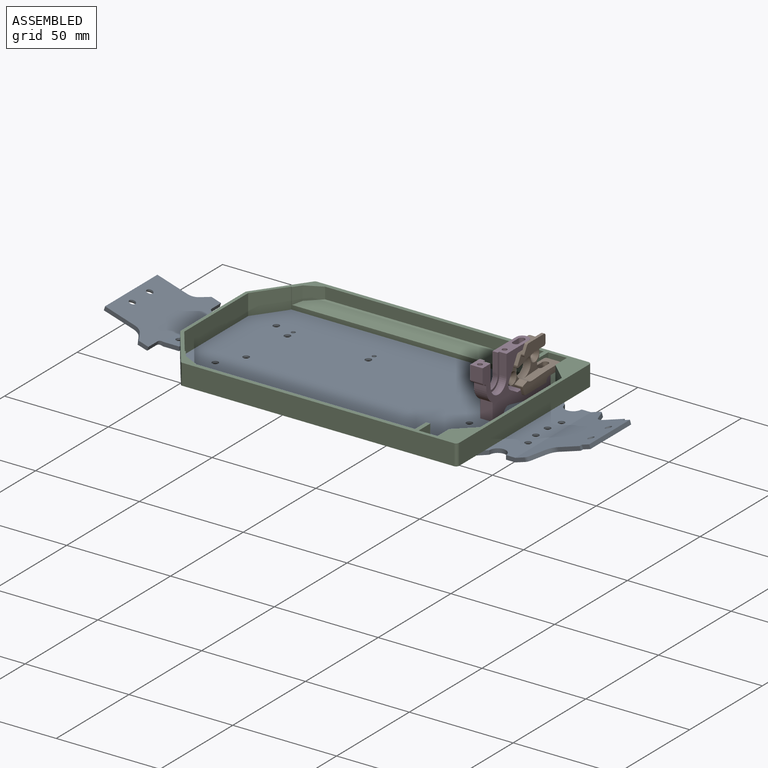
[diagram: assembled view]
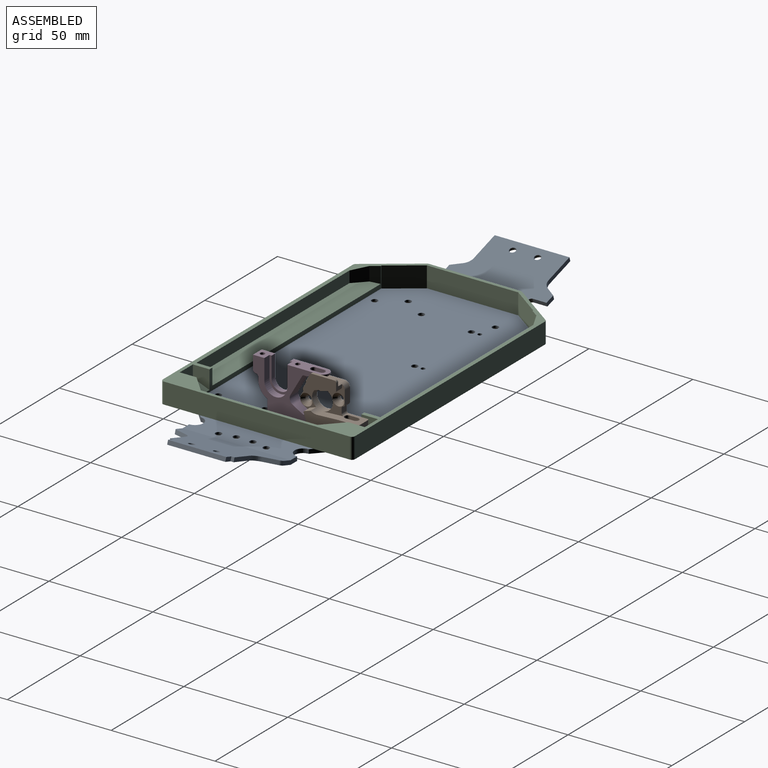
[diagram: assembled view, second angle]
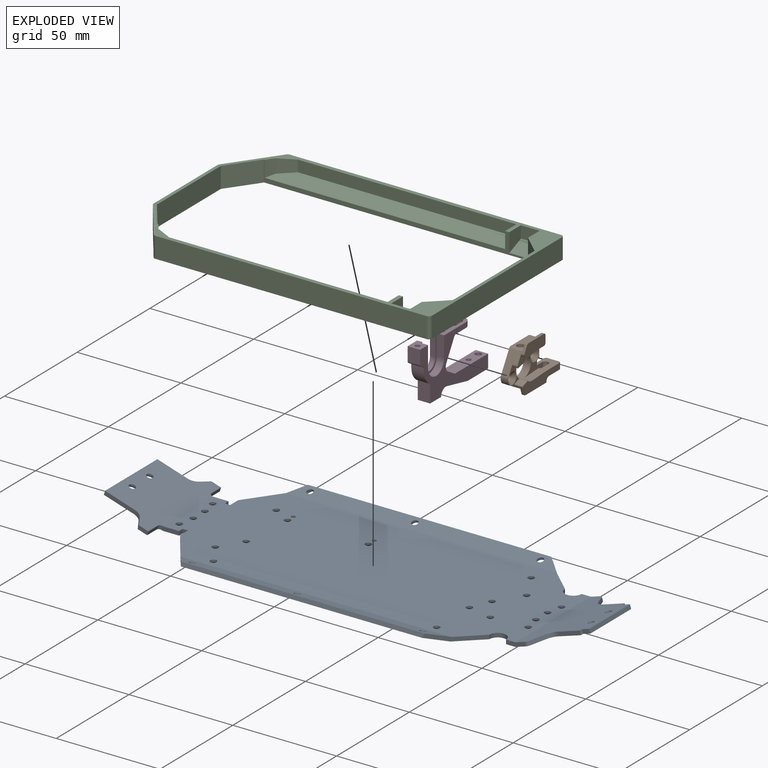
[diagram: exploded view]
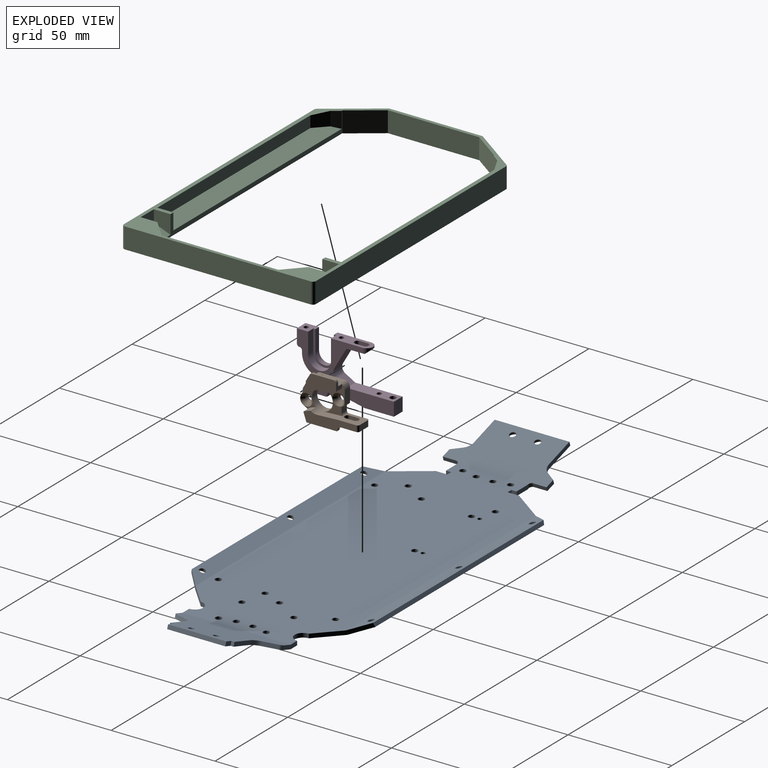
[diagram: exploded view, second angle]
ASSEMBLY  parts=4 mates=3
PART A: 116 faces, bbox 231.6x88.5x10.6 mm
  f0: plane 8.32x2mm, normal (0,-1,0), area 16.1mm2, adj f13,f19,f20,f35,f43
  f1: plane 8.32x2mm, normal (0,1,0), area 16.1mm2, adj f12,f19,f20,f35,f36
  f2: plane 28x1.91mm, normal (0.95,0,0.3), area 56mm2, adj f5,f6,f22,f27
  f3: plane 9.34x3.34mm, normal (0,1,0), area 18.1mm2, adj f5,f6,f7,f19,f20,f23
  f4: plane 9.34x3.34mm, normal (0,-1,0), area 18.1mm2, adj f5,f6,f18,f19,f20,f32
  f5: plane 52.01x27.79mm, normal (0.3,0,-0.95), area 1038.3mm2, adj f2,f3,f4,f19,f21,f22,f23,f24
  f6: plane 52x27.18mm, normal (-0.3,0,0.95), area 1032.1mm2, adj f2,f3,f4,f20,f21,f22,f23,f24
  f7: cylinder r=4mm len=8mm, axis (0,0,-1), area 25.1mm2, adj f3,f8,f19,f20
  f8: plane 19.55x18.24mm, normal (0.68,0.73,0), area 53.6mm2, adj f7,f19,f20,f48,f49,f50
  f9: plane 24.24x17.36mm, normal (-0.81,0.58,0), area 59.7mm2, adj f10,f19,f20,f48,f49,f50
  f10: plane 5.5x2mm, normal (-1,0,0), area 11mm2, adj f9,f11,f19,f20
  f11: plane 2.6x2mm, normal (0,1,0), area 5.2mm2, adj f10,f12,f19,f20
  f12: plane 2.5x2mm, normal (1,0,0), area 5mm2, adj f1,f11,f19,f20
  f13: plane 2.5x2mm, normal (1,0,0), area 5mm2, adj f0,f14,f19,f20
  f14: plane 2.6x2mm, normal (0,-1,0), area 5.2mm2, adj f13,f15,f19,f20
  f15: plane 5.5x2mm, normal (-1,0,0), area 11mm2, adj f14,f16,f19,f20
  f16: plane 24.24x17.36mm, normal (-0.81,-0.58,0), area 59.7mm2, adj f15,f19,f20,f51,f52,f53
  f17: plane 19.55x18.24mm, normal (0.68,-0.73,0), area 53.6mm2, adj f18,f19,f20,f51,f52,f53
  f18: cylinder r=4mm len=8mm, axis (0,0,-1), area 25.1mm2, adj f4,f17,f19,f20
  f19: plane 176x73.12mm, normal (0,0,-1), area 11421.9mm2, adj f0,f1,f3,f4,f5,f7,f8,f9
  f20: plane 176x72.53mm, normal (0,0,1), area 11596.5mm2, adj f0,f1,f3,f4,f6,f7,f8,f9
  f21: plane 1.9x1.5mm, normal (0.95,0,0.3), area 3mm2, adj f5,f6,f22,f26
  f22: plane 4.18x3.02mm, normal (0,1,0), area 7.5mm2, adj f2,f5,f6,f21
  f23: cylinder r=2mm len=2.39mm, axis (-0.3,0,0.95), area 4.4mm2, adj f3,f5,f6,f24
  f24: plane 6.4x3.36mm, normal (0.87,0.41,0.27), area 13.6mm2, adj f5,f6,f23,f25
  f25: cylinder r=5mm len=4.93mm, axis (-0.3,0,0.95), area 11.1mm2, adj f5,f6,f24,f26
  f26: plane 11.09x5.17mm, normal (0,1,0), area 21.7mm2, adj f5,f6,f21,f25
  f27: plane 4.18x3.02mm, normal (0,-1,0), area 7.5mm2, adj f2,f5,f6,f28
  f28: plane 1.9x1.5mm, normal (0.95,0,0.3), area 3mm2, adj f5,f6,f27,f29
  f29: plane 11.09x5.17mm, normal (0,-1,0), area 21.7mm2, adj f5,f6,f28,f30
  f30: cylinder r=5mm len=4.93mm, axis (-0.3,0,0.95), area 11.1mm2, adj f5,f6,f29,f31
  f31: plane 6.4x3.36mm, normal (0.87,-0.41,0.27), area 13.6mm2, adj f5,f6,f30,f32
  f32: cylinder r=2mm len=2.39mm, axis (-0.3,0,0.95), area 4.4mm2, adj f4,f5,f6,f31
  f33: plane 36x1.91mm, normal (-0.95,0,0.3), area 72mm2, adj f34,f35,f41,f44
  f34: plane 50x27.18mm, normal (0.3,0,0.95), area 1110.6mm2, adj f20,f33,f36,f37,f38,f39,f40,f41
  f35: plane 50.01x27.79mm, normal (-0.3,0,-0.95), area 1106mm2, adj f0,f1,f19,f33,f36,f37,f38,f39
  f36: cylinder r=1.5mm len=2.28mm, axis (0.3,0,0.95), area 4.5mm2, adj f1,f34,f35,f37
  f37: plane 6.5x1.83mm, normal (0.95,0,-0.3), area 12.4mm2, adj f34,f35,f36,f38
  f38: plane 5.16x3.27mm, normal (0,1,0), area 9.2mm2, adj f34,f35,f37,f39
  f39: plane 4.69x3.43mm, normal (-0.8,0.54,0.25), area 10.7mm2, adj f34,f35,f38,f40
  f40: cylinder r=5mm len=4.61mm, axis (0.3,0,0.95), area 9.8mm2, adj f34,f35,f39,f41
  f41: plane 14.91x6.37mm, normal (0,1,0), area 29.6mm2, adj f33,f34,f35,f40
  f42: plane 6.5x1.83mm, normal (0.95,0,-0.3), area 12.4mm2, adj f34,f35,f43,f47
  f43: cylinder r=1.5mm len=2.28mm, axis (0.3,0,0.95), area 4.5mm2, adj f0,f34,f35,f42
  f44: plane 14.91x6.37mm, normal (0,-1,0), area 29.6mm2, adj f33,f34,f35,f45
  f45: cylinder r=5mm len=4.61mm, axis (0.3,0,0.95), area 9.8mm2, adj f34,f35,f44,f46
  f46: plane 4.69x3.43mm, normal (-0.8,-0.54,0.25), area 10.7mm2, adj f34,f35,f45,f47
  f47: plane 5.16x3.27mm, normal (0,-1,0), area 9.2mm2, adj f34,f35,f42,f46
  f48: plane 117.27x1.92mm, normal (0,0.96,0.29), area 233.5mm2, adj f8,f9,f49,f50
  f49: plane 129.97x7.68mm, normal (0,0.29,-0.96), area 928.6mm2, adj f8,f9,f19,f48,f88,f89,f90
  f50: plane 130.5x7.4mm, normal (0,-0.29,0.96), area 936.1mm2, adj f8,f9,f20,f48,f57,f58,f59
  f51: plane 129.97x7.68mm, normal (0,-0.29,-0.96), area 928.6mm2, adj f16,f17,f19,f53,f91,f92,f93
  f52: plane 130.5x7.4mm, normal (0,0.29,0.96), area 936.1mm2, adj f16,f17,f20,f53,f54,f55,f56
  f53: plane 117.27x1.92mm, normal (0,-0.96,0.29), area 233.5mm2, adj f16,f17,f51,f52
  f54: cylinder r=1.5mm len=3.16mm, axis (0,0.29,0.96), area 9.4mm2, adj f52,f93
  f55: cylinder r=1.5mm len=3.16mm, axis (0,0.29,0.96), area 9.4mm2, adj f52,f92
  f56: cylinder r=1.5mm len=3.16mm, axis (0,0.29,0.96), area 9.4mm2, adj f52,f91
  f57: cylinder r=1.5mm len=3.16mm, axis (0,-0.29,0.96), area 9.4mm2, adj f50,f90
  f58: cylinder r=1.5mm len=3.16mm, axis (0,-0.29,0.96), area 9.4mm2, adj f50,f89
  f59: cylinder r=1.5mm len=3.16mm, axis (0,-0.29,0.96), area 9.4mm2, adj f50,f88
  f60: cylinder r=1.5mm len=3.15mm, axis (0.3,0,0.95), area 9.2mm2, adj f34,f87
  f61: cylinder r=1.5mm len=3.15mm, axis (0.3,0,0.95), area 9.2mm2, adj f34,f86
  f62: cylinder r=1.5mm len=3mm, axis (0,0,1), area 9.4mm2, adj f20,f111
  f63: cylinder r=1.5mm len=3mm, axis (0,0,1), area 9.4mm2, adj f20,f96
  f64: cylinder r=1.5mm len=3mm, axis (0,0,1), area 9.4mm2, adj f20,f95
  f65: cylinder r=1.5mm len=3mm, axis (0,0,1), area 9.4mm2, adj f20,f102
  f66: cylinder r=1.5mm len=3mm, axis (0,0,1), area 9.4mm2, adj f20,f99
  f67: cylinder r=1.5mm len=3mm, axis (0,0,1), area 9.4mm2, adj f20,f110
  f68: cylinder r=1.5mm len=3mm, axis (0,0,1), area 9.4mm2, adj f20,f107
  f69: cylinder r=1.5mm len=3mm, axis (0,0,1), area 9.4mm2, adj f20,f97
  f70: cylinder r=1.5mm len=3mm, axis (0,0,1), area 9.4mm2, adj f20,f98
  f71: cylinder r=1.5mm len=3mm, axis (0,0,1), area 9.4mm2, adj f20,f113
  f72: cylinder r=1.5mm len=3mm, axis (0,0,1), area 9.4mm2, adj f20,f112
  f73: cylinder r=1.5mm len=3mm, axis (0,0,1), area 9.4mm2, adj f20,f106
  f74: cylinder r=1.5mm len=3mm, axis (0,0,1), area 9.4mm2, adj f20,f103
  f75: cylinder r=1.5mm len=3mm, axis (0,0,1), area 9.4mm2, adj f20,f104
  f76: cylinder r=1.5mm len=3mm, axis (0,0,1), area 9.4mm2, adj f20,f105
  f77: cylinder r=1.5mm len=3mm, axis (0,0,1), area 9.4mm2, adj f20,f109
  f78: cylinder r=1.5mm len=3mm, axis (0,0,1), area 9.4mm2, adj f20,f94
  f79: cylinder r=1.5mm len=3mm, axis (0,0,1), area 9.4mm2, adj f20,f101
  f80: cylinder r=1.5mm len=3mm, axis (0,0,1), area 9.4mm2, adj f20,f100
  f81: cylinder r=1.5mm len=3mm, axis (0,0,1), area 9.4mm2, adj f20,f108
  f82: cylinder r=1.5mm len=3.16mm, axis (-0.3,0,0.95), area 9.3mm2, adj f6,f84
  f83: cylinder r=1.5mm len=3.16mm, axis (-0.3,0,0.95), area 9.3mm2, adj f6,f85
  f84: bspline ~5x4.77mm, area 17.8mm2, adj f5,f82
  f85: bspline ~5x4.77mm, area 17.8mm2, adj f5,f83
  f86: bspline ~5x4.77mm, area 17.8mm2, adj f35,f61
  f87: bspline ~5x4.77mm, area 17.8mm2, adj f35,f60
  f88: cone r=1.5mm half-angle=45deg, axis (0,0.29,-0.96), area 17.8mm2, adj f49,f59
  f89: cone r=1.5mm half-angle=45deg, axis (0,0.29,-0.96), area 17.8mm2, adj f49,f58
  f90: cone r=1.5mm half-angle=45deg, axis (0,0.29,-0.96), area 17.8mm2, adj f49,f57
  f91: cone r=1.5mm half-angle=45deg, axis (0,-0.29,-0.96), area 17.8mm2, adj f51,f56
  f92: cone r=1.5mm half-angle=45deg, axis (0,-0.29,-0.96), area 17.8mm2, adj f51,f55
  f93: cone r=1.5mm half-angle=45deg, axis (0,-0.29,-0.96), area 17.8mm2, adj f51,f54
  f94: cone r=1.5mm half-angle=45deg, axis (0,0,-1), area 17.8mm2, adj f19,f78
  f95: cone r=1.5mm half-angle=45deg, axis (0,0,-1), area 17.8mm2, adj f19,f64
  f96: cone r=1.5mm half-angle=45deg, axis (0,0,-1), area 17.8mm2, adj f19,f63
  f97: cone r=1.5mm half-angle=45deg, axis (0,0,-1), area 17.8mm2, adj f19,f69
  f98: cone r=1.5mm half-angle=45deg, axis (0,0,-1), area 17.8mm2, adj f19,f70
  f99: cone r=1.5mm half-angle=45deg, axis (0,0,-1), area 17.8mm2, adj f19,f66
  f100: cone r=1.5mm half-angle=45deg, axis (0,0,-1), area 17.8mm2, adj f19,f80
  f101: cone r=1.5mm half-angle=45deg, axis (0,0,-1), area 17.8mm2, adj f19,f79
  f102: cone r=1.5mm half-angle=45deg, axis (0,0,-1), area 17.8mm2, adj f19,f65
  f103: cone r=1.5mm half-angle=45deg, axis (0,0,-1), area 17.8mm2, adj f19,f74
  f104: cone r=1.5mm half-angle=45deg, axis (0,0,-1), area 17.8mm2, adj f19,f75
  f105: cone r=1.5mm half-angle=45deg, axis (0,0,-1), area 17.8mm2, adj f19,f76
  f106: cone r=1.5mm half-angle=45deg, axis (0,0,-1), area 17.8mm2, adj f19,f73
  f107: cone r=1.5mm half-angle=45deg, axis (0,0,-1), area 17.8mm2, adj f19,f68
  f108: cone r=1.5mm half-angle=45deg, axis (0,0,-1), area 17.8mm2, adj f19,f81
  f109: cone r=1.5mm half-angle=45deg, axis (0,0,-1), area 17.8mm2, adj f19,f77
  f110: cone r=1.5mm half-angle=45deg, axis (0,0,-1), area 17.8mm2, adj f19,f67
  f111: cone r=1.5mm half-angle=45deg, axis (0,0,-1), area 17.8mm2, adj f19,f62
  f112: cone r=1.5mm half-angle=45deg, axis (0,0,-1), area 17.8mm2, adj f19,f72
  f113: cone r=1.5mm half-angle=45deg, axis (0,0,-1), area 17.8mm2, adj f19,f71
  f114: cylinder r=1mm len=2mm, axis (0,0,1), area 12.6mm2, adj f19,f20
  f115: cylinder r=1mm len=2mm, axis (0,0,1), area 12.6mm2, adj f19,f20
PART B: 56 faces, bbox 30.8x21.8x7.6 mm
  f0: plane 9.8x7.55mm, normal (0,1,0), area 54.5mm2, adj f13,f16,f20,f21,f36,f50,f51,f52
  f1: cylinder r=5mm len=10mm, axis (0,0,-1), area 126.4mm2, adj f3,f16,f21,f35,f36,f38,f44,f47
  f2: cylinder r=1mm len=4mm, axis (0,0,1), area 6.2mm2, adj f3,f15,f22,f37,f41,f44
  f3: plane 14.31x10.54mm, normal (0,0,1), area 47.5mm2, adj f1,f2,f5,f6,f7,f8,f9,f13
  f4: plane 6.15x4.76mm, normal (-0.5,-0.87,0), area 24mm2, adj f11,f19,f21,f28,f32,f38
  f5: plane 6.6x3.55mm, normal (1,0,0), area 23.4mm2, adj f3,f8,f9,f21
  f6: plane 3.55x2.5mm, normal (1,0,0), area 8.9mm2, adj f3,f7,f13,f21
  f7: cylinder r=0.75mm len=3.55mm, axis (0,0,-1), area 4.2mm2, adj f3,f6,f8,f21
  f8: cylinder r=0.75mm len=3.55mm, axis (0,0,-1), area 4.2mm2, adj f3,f5,f7,f21
  f9: cylinder r=2.5mm len=6.15mm, axis (0,0,-1), area 17mm2, adj f3,f5,f17,f21,f22,f26
  f10: plane 12.28x7.55mm, normal (-0.87,0.5,0), area 59.4mm2, adj f11,f15,f18,f21,f25,f26,f33,f38
  f11: cylinder r=3mm len=4.1mm, axis (0,0,-1), area 16.7mm2, adj f4,f10,f21,f38
  f12: cylinder r=1.45mm len=2.9mm, axis (0,0,-1), area 19.1mm2, adj f21,f40
  f13: cylinder r=1mm len=3.55mm, axis (0,0,-1), area 5.6mm2, adj f0,f3,f6,f21
  f14: cylinder r=1.45mm len=2.9mm, axis (0,0,-1), area 19.1mm2, adj f21,f39
  f15: plane 14.65x5.25mm, normal (0,0,1), area 71.6mm2, adj f2,f10,f22,f23,f24,f25,f33,f37
  f16: plane 25.37x5.6mm, normal (0,0,1), area 104.2mm2, adj f0,f1,f19,f27,f28,f29,f30,f31
  f17: plane 12.16x6.15mm, normal (0,1,0), area 66.2mm2, adj f9,f18,f21,f26,f49
  f18: cylinder r=1mm len=6.15mm, axis (0,0,-1), area 6.4mm2, adj f10,f17,f21,f26
  f19: plane 24.54x7.55mm, normal (0,-1,0), area 143mm2, adj f4,f16,f20,f21,f27,f32,f50,f51
  f20: plane 5.55x2.9mm, normal (1,0,0), area 16.1mm2, adj f0,f19,f50,f51
  f21: plane 29.8x17mm, normal (0,0,-1), area 244.4mm2, adj f0,f1,f4,f5,f6,f7,f8,f9
  f22: plane 4x3.25mm, normal (1,0,0), area 8.1mm2, adj f2,f3,f9,f15,f23,f26
  f23: cylinder r=1mm len=1.4mm, axis (0,0,1), area 2.2mm2, adj f15,f22,f24,f26
  f24: plane 10.77x1.4mm, normal (0,1,0), area 15.1mm2, adj f15,f23,f25,f26
  f25: cylinder r=1mm len=1.4mm, axis (0,0,1), area 1.5mm2, adj f10,f15,f24,f26
  f26: plane 14.16x3.13mm, normal (0,0,-1), area 34.3mm2, adj f9,f10,f17,f18,f22,f23,f24,f25
  f27: cylinder r=1.75mm len=1.75mm, axis (0,0,1), area 3.8mm2, adj f16,f19,f31,f32
  f28: plane 4x3.62mm, normal (-0.95,-0.32,0), area 7.8mm2, adj f4,f16,f29,f32,f34,f38
  f29: cylinder r=0.5mm len=1.4mm, axis (0,0,1), area 0.9mm2, adj f16,f28,f30,f32
  f30: plane 14.14x1.4mm, normal (0,-1,0), area 19.8mm2, adj f16,f29,f31,f32
  f31: cylinder r=0.5mm len=1.4mm, axis (0,0,1), area 1.1mm2, adj f16,f27,f30,f32
  f32: plane 17.79x3.07mm, normal (0,0,-1), area 34.9mm2, adj f4,f19,f27,f28,f29,f30,f31
  f33: cylinder r=1mm len=1.5mm, axis (0,0,1), area 3.1mm2, adj f10,f15,f37,f44
  f34: cylinder r=0.5mm len=4mm, axis (0,0,1), area 3.1mm2, adj f16,f28,f35,f38
  f35: plane 4x2.98mm, normal (-0.32,0.95,0), area 12.6mm2, adj f1,f16,f34,f38
  f36: plane 10.04x4mm, normal (-0.05,1,0), area 40.2mm2, adj f0,f1,f3,f16
  f37: plane 12.65x1.5mm, normal (0,-1,0), area 19mm2, adj f2,f15,f33,f44
  f38: plane 10.6x7.75mm, normal (0,0,1), area 19.2mm2, adj f1,f4,f10,f11,f28,f34,f35,f40
  f39: cone r=1.45mm half-angle=45deg, axis (0,0,1), area 28mm2, adj f3,f14
  f40: cone r=1.45mm half-angle=45deg, axis (0,0,1), area 28mm2, adj f12,f38
  f41: plane 7.47x2.5mm, normal (0.26,-0.97,0), area 19.3mm2, adj f2,f3,f44,f48
  f42: plane 2.5x0.51mm, normal (-1,0,0), area 1.3mm2, adj f38,f44,f45,f46
  f43: plane 3.8x2.5mm, normal (0.26,-0.97,0), area 9.8mm2, adj f38,f44,f46,f47
  f44: plane 16.15x5.68mm, normal (0,0,1), area 31.6mm2, adj f1,f2,f10,f33,f37,f41,f42,f43
  f45: cylinder r=0.5mm len=2.5mm, axis (0,0,-1), area 0.7mm2, adj f10,f38,f42,f44
  f46: cylinder r=0.5mm len=2.5mm, axis (0,0,-1), area 2.3mm2, adj f38,f42,f43,f44
  f47: cylinder r=0.5mm len=2.5mm, axis (0,0,-1), area 0.5mm2, adj f1,f38,f43,f44
  f48: cylinder r=0.5mm len=2.5mm, axis (0,0,-1), area 0.5mm2, adj f1,f3,f41,f44
  f49: cylinder r=1.65mm len=5.61mm, axis (0,1,0), area 51.2mm2, adj f1,f17
  f50: cylinder r=1mm len=2.9mm, axis (0,1,0), area 4.6mm2, adj f0,f19,f20,f21
  f51: cylinder r=1mm len=2.9mm, axis (0,-1,0), area 4.6mm2, adj f0,f16,f19,f20
  f52: cylinder r=1.5mm len=3mm, axis (0,1,0), area 13.7mm2, adj f0,f19,f53,f54
  f53: plane 4x2.9mm, normal (0,0,-1), area 11.6mm2, adj f0,f19,f52,f55
  f54: plane 4x2.9mm, normal (0,0,1), area 11.6mm2, adj f0,f19,f52,f55
  f55: cylinder r=1.5mm len=3mm, axis (0,1,0), area 13.7mm2, adj f0,f19,f53,f54
PART C: 51 faces, bbox 150x92.5x10 mm
  f0: plane 127.27x9.91mm, normal (0,-1,0), area 274.7mm2, adj f2,f8,f18,f26,f32,f34,f40,f41
  f1: plane 127.27x9.91mm, normal (0,1,0), area 274.7mm2, adj f2,f9,f19,f24,f27,f33,f35,f37
  f2: plane 150x92.53mm, normal (0,0,1), area 1103.7mm2, adj f0,f1,f3,f4,f5,f6,f14,f18
  f3: plane 89.53x10mm, normal (1,0,0), area 895.3mm2, adj f2,f7,f43,f44
  f4: plane 56.16x10mm, normal (-1,0,0), area 561.6mm2, adj f2,f7,f24,f26
  f5: plane 22.75x16.29mm, normal (-0.81,-0.58,0), area 268.8mm2, adj f2,f7,f9,f13,f15,f16,f46,f48
  f6: plane 22.75x16.29mm, normal (-0.81,0.58,0), area 268.8mm2, adj f2,f7,f8,f12,f15,f17,f45,f47
  f7: plane 134.43x92.53mm, normal (0,0,-1), area 950.4mm2, adj f3,f4,f5,f6,f10,f11,f16,f17
  f8: plane 130.18x7.4mm, normal (0,0.29,-0.96), area 917.9mm2, adj f0,f6,f11,f12,f15,f18,f25
  f9: plane 130.18x7.4mm, normal (0,-0.29,-0.96), area 917.9mm2, adj f1,f5,f10,f13,f15,f19,f23
  f10: plane 8.23x7.68mm, normal (-0.68,0.73,0), area 13.1mm2, adj f7,f9,f13,f16,f23
  f11: plane 8.23x7.68mm, normal (-0.68,-0.73,0), area 13.1mm2, adj f7,f8,f12,f17,f25
  f12: plane 117.27x1.92mm, normal (0,-0.96,-0.29), area 233.5mm2, adj f6,f8,f11,f17
  f13: plane 117.27x1.92mm, normal (0,0.96,-0.29), area 233.5mm2, adj f5,f9,f10,f16
  f14: plane 44.04x10mm, normal (-1,0,0), area 440.4mm2, adj f2,f15,f47,f48
  f15: plane 72.53x11.83mm, normal (0,0,-1), area 126.3mm2, adj f5,f6,f8,f9,f14,f18,f19,f20
  f16: plane 116.24x0.31mm, normal (0,1,0), area 36mm2, adj f5,f7,f10,f13
  f17: plane 116.24x0.31mm, normal (0,-1,0), area 36mm2, adj f6,f7,f11,f12
  f18: plane 14.57x10.44mm, normal (0.81,-0.58,0), area 179.2mm2, adj f0,f2,f8,f15,f20
  f19: plane 14.57x10.44mm, normal (0.81,0.58,0), area 179.2mm2, adj f1,f2,f9,f15,f20
  f20: plane 43.97x10mm, normal (1,0,0), area 439.7mm2, adj f2,f15,f18,f19
  f21: plane 130.71x10mm, normal (0,1,0), area 1307.1mm2, adj f2,f7,f44,f45
  f22: plane 130.71x10mm, normal (0,-1,0), area 1307.1mm2, adj f2,f7,f43,f46
  f23: plane 0.73x0.09mm, normal (0,-1,0), area 0.1mm2, adj f7,f9,f10,f24
  f24: plane 10x9.09mm, normal (-0.68,0.73,0), area 124.3mm2, adj f1,f2,f4,f7,f23,f29
  f25: plane 0.73x0.09mm, normal (0,1,0), area 0.1mm2, adj f7,f8,f11,f26
  f26: plane 10x9.09mm, normal (-0.68,-0.73,0), area 124.3mm2, adj f0,f2,f4,f7,f25,f30
  f27: plane 9x8mm, normal (1,0,0), area 59.2mm2, adj f1,f2,f28,f33
  f28: plane 9x5.8mm, normal (0,1,0), area 52.2mm2, adj f2,f27,f29,f33
  f29: plane 9x8mm, normal (-1,0,0), area 59.2mm2, adj f2,f24,f28,f33
  f30: plane 9x8mm, normal (-1,0,0), area 59.2mm2, adj f2,f26,f31,f34
  f31: plane 9x5.8mm, normal (0,-1,0), area 52.2mm2, adj f2,f30,f32,f34
  f32: plane 9x8mm, normal (1,0,0), area 59.2mm2, adj f0,f2,f31,f34
  f33: plane 9x8mm, normal (0,0.37,0.93), area 77.5mm2, adj f1,f27,f28,f29
  f34: plane 9x8mm, normal (0,-0.37,0.93), area 77.5mm2, adj f0,f30,f31,f32
  f35: plane 7.82x3.64mm, normal (0.81,0.58,0), area 32.6mm2, adj f1,f2,f38,f50
  f36: plane 105.26x5.51mm, normal (0,1,0), area 579.6mm2, adj f2,f37,f38,f50
  f37: plane 7.82x7.71mm, normal (-1,0,0), area 51.4mm2, adj f1,f2,f36,f38
  f38: plane 115.78x7.71mm, normal (0,0.29,0.96), area 898.8mm2, adj f1,f35,f36,f37,f50
  f39: plane 105.26x5.51mm, normal (0,-1,0), area 579.6mm2, adj f2,f41,f42,f49
  f40: plane 7.82x3.64mm, normal (0.81,-0.58,0), area 32.6mm2, adj f0,f2,f41,f49
  f41: plane 115.78x7.71mm, normal (0,-0.29,0.96), area 898.8mm2, adj f0,f39,f40,f42,f49
  f42: plane 7.82x7.71mm, normal (-1,0,0), area 51.4mm2, adj f0,f2,f39,f41
  f43: cylinder r=1.5mm len=10mm, axis (0,0,1), area 23.6mm2, adj f2,f3,f7,f22
  f44: cylinder r=1.5mm len=10mm, axis (0,0,-1), area 23.6mm2, adj f2,f3,f7,f21
  f45: cylinder r=1.5mm len=10mm, axis (0,0,1), area 14.2mm2, adj f2,f6,f7,f21
  f46: cylinder r=1.5mm len=10mm, axis (0,0,1), area 14.2mm2, adj f2,f5,f7,f22
  f47: cylinder r=1.5mm len=10mm, axis (0,0,-1), area 9.3mm2, adj f2,f6,f14,f15
  f48: cylinder r=1.5mm len=10mm, axis (0,0,1), area 9.3mm2, adj f2,f5,f14,f15
  f49: plane 7.91x6.73mm, normal (0.46,-0.89,0), area 54.4mm2, adj f2,f39,f40,f41
  f50: plane 7.91x6.73mm, normal (0.46,0.89,0), area 54.4mm2, adj f2,f35,f36,f38
PART D: 42 faces, bbox 46.8x26x6 mm
  f0: cylinder r=3mm len=6mm, axis (0,-1,0), area 14mm2, adj f21,f22,f23,f24,f29
  f1: plane 6.5x6mm, normal (0,1,0), area 31.2mm2, adj f3,f5,f23,f24,f25,f28,f36
  f2: cylinder r=4.45mm len=8.9mm, axis (0,0,-1), area 35mm2, adj f3,f4,f24,f28
  f3: plane 10.05x2.5mm, normal (1,0,0), area 25.1mm2, adj f1,f2,f24,f28
  f4: plane 10.05x2.5mm, normal (-1,0,0), area 25.1mm2, adj f2,f22,f24,f28
  f5: plane 6.5x6mm, normal (-1,0,0), area 39mm2, adj f1,f6,f23,f24
  f6: cylinder r=1.25mm len=6mm, axis (0,0,-1), area 11.8mm2, adj f5,f7,f23,f24
  f7: cylinder r=1.25mm len=6mm, axis (0,0,-1), area 11.8mm2, adj f6,f8,f23,f24
  f8: plane 6x1.05mm, normal (-1,0,0), area 6.3mm2, adj f7,f9,f23,f24
  f9: cylinder r=8.45mm len=7.42mm, axis (0,0,-1), area 54.3mm2, adj f8,f10,f23,f24
  f10: plane 8.53x6mm, normal (-1,0,0), area 51.2mm2, adj f9,f11,f23,f24
  f11: plane 7.5x6mm, normal (0,-1,0), area 40.8mm2, adj f10,f12,f23,f24,f41
  f12: cylinder r=3.25mm len=6mm, axis (0,0,-1), area 34.9mm2, adj f11,f13,f23,f24
  f13: plane 14.4x6mm, normal (-0.22,-0.98,0), area 88.5mm2, adj f12,f14,f23,f24
  f14: plane 14x6mm, normal (0,-1,0), area 72.8mm2, adj f13,f15,f23,f24,f38,f39
  f15: plane 6.5x6mm, normal (1,0,0), area 39mm2, adj f14,f16,f23,f24
  f16: plane 22.84x6mm, normal (0,1,0), area 125.8mm2, adj f15,f17,f23,f24,f38,f39
  f17: plane 6x4.76mm, normal (0.5,0.87,0), area 33mm2, adj f16,f18,f23,f24
  f18: cylinder r=3mm len=6mm, axis (0,0,-1), area 28.3mm2, adj f17,f19,f23,f24
  f19: plane 9.65x6mm, normal (0.87,-0.5,0), area 66.9mm2, adj f18,f20,f23,f24
  f20: cylinder r=1mm len=6mm, axis (0,0,-1), area 6.3mm2, adj f19,f21,f23,f24
  f21: plane 8.16x6mm, normal (0,-1,0), area 29.5mm2, adj f0,f20,f23,f24,f29,f30,f31,f32
  f22: plane 19.25x6mm, normal (0,1,0), area 84.5mm2, adj f0,f4,f23,f24,f27,f28,f30,f31
  f23: plane 46.75x26mm, normal (0,0,1), area 444.9mm2, adj f0,f1,f5,f6,f7,f8,f9,f10
  f24: plane 46.75x26mm, normal (0,0,-1), area 482.4mm2, adj f0,f1,f2,f3,f4,f5,f6,f7
  f25: plane 10.05x3.5mm, normal (1,0,0), area 35.2mm2, adj f1,f23,f26,f28
  f26: cylinder r=5.5mm len=11mm, axis (0,0,1), area 60.5mm2, adj f23,f25,f27,f28
  f27: plane 10.05x3.5mm, normal (-1,0,0), area 35.2mm2, adj f22,f23,f26,f28
  f28: plane 15.55x11mm, normal (0,0,1), area 37.5mm2, adj f1,f2,f3,f4,f22,f25,f26,f27
  f29: plane 5.66x2mm, normal (0.71,-0.71,0), area 11.7mm2, adj f0,f21
  f30: cylinder r=1.53mm len=3.05mm, axis (0,1,0), area 12mm2, adj f21,f22,f31,f32
  f31: plane 3.95x2.5mm, normal (0,0,-1), area 9.9mm2, adj f21,f22,f30,f33
  f32: plane 3.95x2.5mm, normal (0,0,1), area 9.9mm2, adj f21,f22,f30,f33
  f33: cylinder r=1.53mm len=3.05mm, axis (0,1,0), area 12mm2, adj f21,f22,f31,f32
  f34: cylinder r=1.15mm len=7mm, axis (0,1,0), area 50.6mm2, adj f22,f35
  f35: plane 2.3x2.3mm, normal (0,1,0), area 4.2mm2, adj f34
  f36: cylinder r=1.15mm len=7mm, axis (0,1,0), area 50.6mm2, adj f1,f37
  f37: plane 2.3x2.3mm, normal (0,1,0), area 4.2mm2, adj f36
  f38: cylinder r=1.5mm len=6.5mm, axis (0,-1,0), area 61.3mm2, adj f14,f16
  f39: cylinder r=1.15mm len=6.5mm, axis (0,-1,0), area 47mm2, adj f14,f16
  f40: plane 2.3x2.3mm, normal (0,-1,0), area 4.2mm2, adj f41
  f41: cylinder r=1.15mm len=6.5mm, axis (0,-1,0), area 47mm2, adj f11,f40
PLACE A t=(0.83,-6.78,-0.61)mm fixed
PLACE B rot(axis=(0.58,0.58,0.58),120deg) t=(171.49,34.32,5.69)mm
PLACE C t=(0.83,-6.78,-0.61)mm
PLACE D rot(axis=(0.58,0.58,0.58),120deg) t=(171.51,-17.43,1.39)mm
MATE fastened D.f41 <-> A.f72  axis (0,0,-1) through (174.51,-6.78,1.39)mm
MATE fastened C.f8 <-> A.f50  axis (0,0.29,-0.96) through (55.31,36.88,3.62)mm
MATE slider D.f15 <-> B.f20  axis (0,1,0) through (174.51,29.32,7.89)mm
